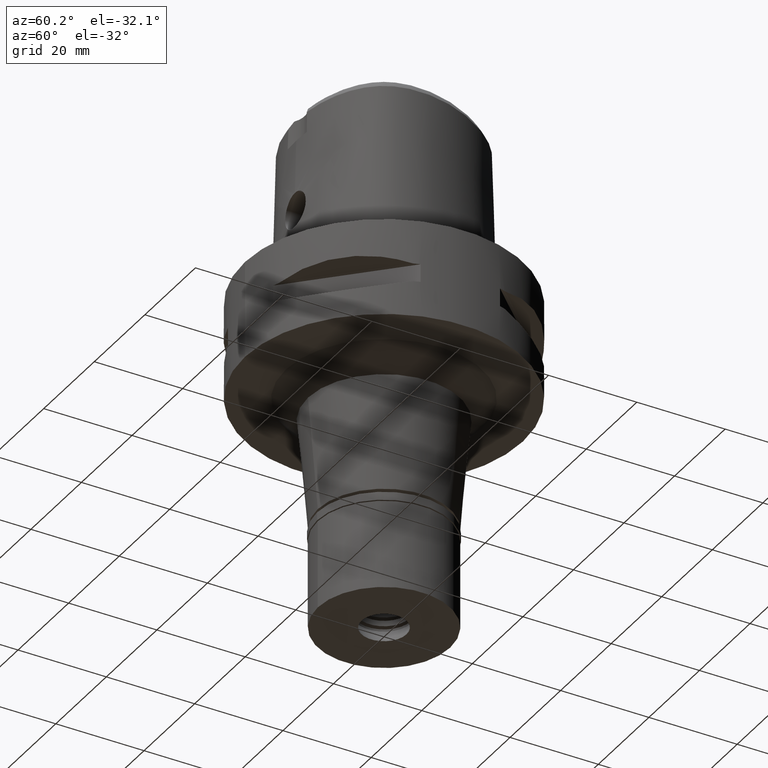
[diagram: clean part render]
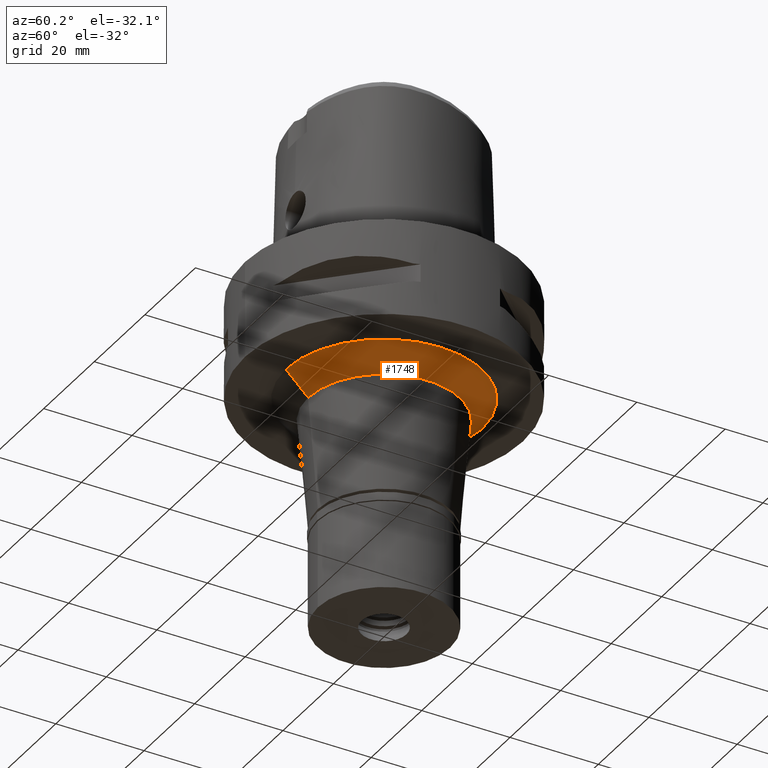
[diagram: same view with one face highlighted and labeled with its STEP entity id]
A machine part, auxiliary view. The second image highlights one B-rep face of the part: STEP entity #1748.
In plain terms, the highlighted conical surface has half-angle 45 deg.
Its self-contained STEP definition (entity closure, byte-faithful):
#191 = DIRECTION ( 'NONE',  ( 0.0000000000000000000, -0.7071067811862969954, -0.7071067811867980391 ) ) ;
#493 = VERTEX_POINT ( 'NONE', #2669 ) ;
#781 = ORIENTED_EDGE ( 'NONE', *, *, #4541, .T. ) ;
#804 = VERTEX_POINT ( 'NONE', #915 ) ;
#909 = DIRECTION ( 'NONE',  ( 0.0000000000000000000, 0.0000000000000000000, -1.000000000000000000 ) ) ;
#915 = CARTESIAN_POINT ( 'NONE',  ( 0.0000000000000000000, 22.20471432084999819, -22.00000000000000000 ) ) ;
#1165 = DIRECTION ( 'NONE',  ( 0.0000000000000000000, 1.000000000000000000, 0.0000000000000000000 ) ) ;
#1568 = ORIENTED_EDGE ( 'NONE', *, *, #4367, .T. ) ;
#1748 = ADVANCED_FACE ( 'NONE', ( #2679 ), #4460, .T. ) ;
#1800 = DIRECTION ( 'NONE',  ( 0.0000000000000000000, 0.7071067811862969954, -0.7071067811867980391 ) ) ;
#1931 = DIRECTION ( 'NONE',  ( 0.0000000000000000000, 1.000000000000000000, 0.0000000000000000000 ) ) ;
#2010 = AXIS2_PLACEMENT_3D ( 'NONE', #3866, #4229, #1931 ) ;
#2213 = CARTESIAN_POINT ( 'NONE',  ( 0.0000000000000000000, -22.20471432084999819, -22.00000000000000000 ) ) ;
#2281 = DIRECTION ( 'NONE',  ( 0.0000000000000000000, 0.0000000000000000000, 1.000000000000000000 ) ) ;
#2378 = VERTEX_POINT ( 'NONE', #4557 ) ;
#2414 = VECTOR ( 'NONE', #191, 1000.000000000000000 ) ;
#2669 = CARTESIAN_POINT ( 'NONE',  ( 0.0000000000000000000, -22.20471432084999819, -22.00000000000000000 ) ) ;
#2679 = FACE_OUTER_BOUND ( 'NONE', #4192, .T. ) ;
#2799 = CARTESIAN_POINT ( 'NONE',  ( 0.0000000000000000000, 22.20471432084999819, -22.00000000000000000 ) ) ;
#2880 = CIRCLE ( 'NONE', #3038, 17.20471432086000263 ) ;
#2980 = CARTESIAN_POINT ( 'NONE',  ( 0.0000000000000000000, 0.0000000000000000000, -22.00000000000000000 ) ) ;
#3038 = AXIS2_PLACEMENT_3D ( 'NONE', #4163, #2281, #3791 ) ;
#3044 = AXIS2_PLACEMENT_3D ( 'NONE', #2980, #909, #1165 ) ;
#3045 = ORIENTED_EDGE ( 'NONE', *, *, #3579, .F. ) ;
#3270 = EDGE_CURVE ( 'NONE', #2378, #4697, #2880, .T. ) ;
#3324 = LINE ( 'NONE', #2213, #4386 ) ;
#3387 = CARTESIAN_POINT ( 'NONE',  ( 0.0000000000000000000, 17.20471432085000174, -27.00000000000000000 ) ) ;
#3564 = LINE ( 'NONE', #2799, #2414 ) ;
#3579 = EDGE_CURVE ( 'NONE', #804, #4697, #3564, .T. ) ;
#3791 = DIRECTION ( 'NONE',  ( 0.0000000000000000000, -1.000000000000000000, 0.0000000000000000000 ) ) ;
#3836 = CIRCLE ( 'NONE', #3044, 22.20471432084999819 ) ;
#3866 = CARTESIAN_POINT ( 'NONE',  ( 0.0000000000000000000, 0.0000000000000000000, -24.50000000000000000 ) ) ;
#4163 = CARTESIAN_POINT ( 'NONE',  ( 0.0000000000000000000, 0.0000000000000000000, -27.00000000000000000 ) ) ;
#4192 = EDGE_LOOP ( 'NONE', ( #781, #1568, #4296, #3045 ) ) ;
#4229 = DIRECTION ( 'NONE',  ( 0.0000000000000000000, 0.0000000000000000000, 1.000000000000000000 ) ) ;
#4296 = ORIENTED_EDGE ( 'NONE', *, *, #3270, .T. ) ;
#4367 = EDGE_CURVE ( 'NONE', #493, #2378, #3324, .T. ) ;
#4386 = VECTOR ( 'NONE', #1800, 1000.000000000000000 ) ;
#4460 = CONICAL_SURFACE ( 'NONE', #2010, 19.70471432085000174, 0.7853981633972997312 ) ;
#4541 = EDGE_CURVE ( 'NONE', #804, #493, #3836, .T. ) ;
#4557 = CARTESIAN_POINT ( 'NONE',  ( 0.0000000000000000000, -17.20471432085000174, -27.00000000000000000 ) ) ;
#4697 = VERTEX_POINT ( 'NONE', #3387 ) ;